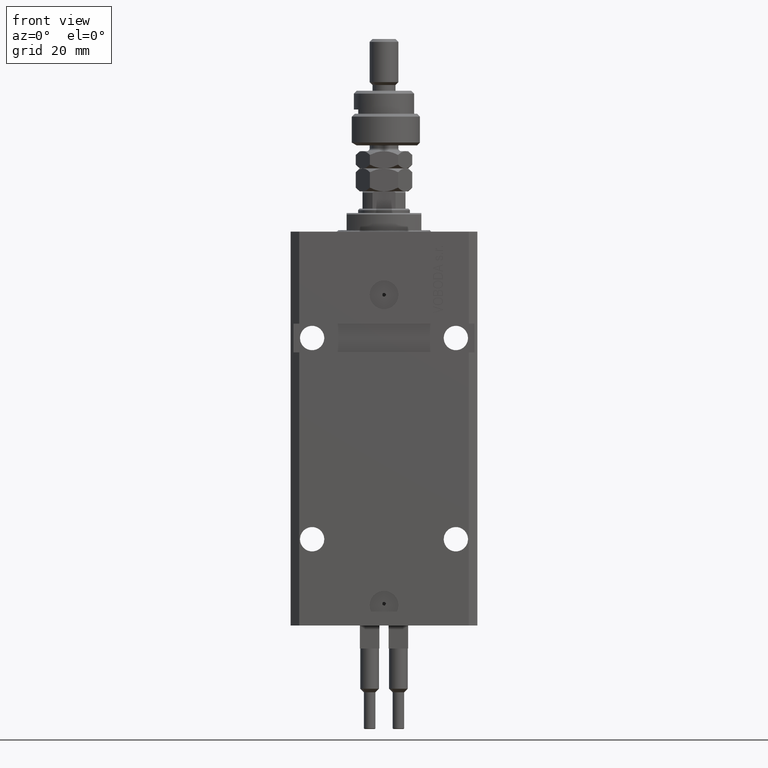
[diagram: clean part render]
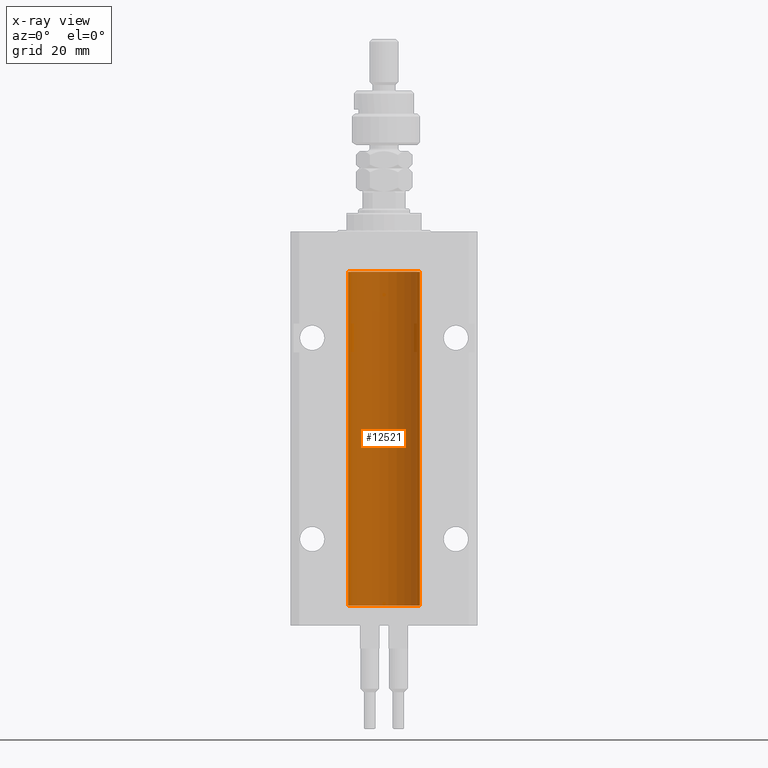
[diagram: x-ray — body ghosted, one internal face saturated and labeled with its STEP entity id]
A machine part, front view, then the same camera in x-ray: the body is ghosted and one INTERNAL B-rep face — a face not visible from any outside direction — is saturated and labeled: STEP entity #12521.
In plain terms, the highlighted cylindrical surface (edge-blend (fillet) strip) has radius 12.5 mm, axis along (0, 0, 1).
Its self-contained STEP definition (entity closure, byte-faithful):
#1076 = B_SPLINE_CURVE_WITH_KNOTS ( 'NONE', 3,
 ( #25476, #29626, #13275, #29127, #9394, #25225, #41075, #5492 ),
 .UNSPECIFIED., .F., .F.,
 ( 4, 2, 2, 4 ),
 ( 2.576359803311334014E-18, 0.0002443481056285645150, 0.0004886962112571264279, 0.0009773924225142506875 ),
 .UNSPECIFIED. ) ;
#1500 = CARTESIAN_POINT ( 'NONE',  ( -12.50000000000000000, 1.530808498934191521E-15, -13.99999999999999822 ) ) ;
#1703 = EDGE_CURVE ( 'NONE', #19791, #24004, #14175, .T. ) ;
#1780 = DIRECTION ( 'NONE',  ( -0.000000000000000000, -0.000000000000000000, 1.000000000000000000 ) ) ;
#2064 = CARTESIAN_POINT ( 'NONE',  ( 12.50000000000017941, 3.868073647803008074E-13, -124.3749999999964047 ) ) ;
#2684 = EDGE_CURVE ( 'NONE', #48720, #20170, #30873, .T. ) ;
#2827 = CARTESIAN_POINT ( 'NONE',  ( 12.49999999999999467, 0.1631389616600898151, -124.3750000000002274 ) ) ;
#2836 = CARTESIAN_POINT ( 'NONE',  ( 12.50000000000017941, 3.868073647803008074E-13, -124.3749999999964047 ) ) ;
#3736 = EDGE_CURVE ( 'NONE', #27056, #47317, #24657, .T. ) ;
#3799 = EDGE_CURVE ( 'NONE', #22326, #26170, #48735, .T. ) ;
#3872 = CARTESIAN_POINT ( 'NONE',  ( 12.50000000000000000, 0.000000000000000000, -130.0999999999999943 ) ) ;
#5492 = CARTESIAN_POINT ( 'NONE',  ( 12.48436522214846889, 0.6250000000078781426, -21.99999999999923261 ) ) ;
#6518 = EDGE_CURVE ( 'NONE', #47317, #26170, #37731, .T. ) ;
#6728 = CARTESIAN_POINT ( 'NONE',  ( 12.49012055744648642, 0.5002956126656095126, -124.6164171020240445 ) ) ;
#6980 = CARTESIAN_POINT ( 'NONE',  ( 12.48436522214887745, 0.6249999999996828093, -124.9184733946234758 ) ) ;
#6993 = DIRECTION ( 'NONE',  ( 0.000000000000000000, 0.000000000000000000, 1.000000000000000000 ) ) ;
#7132 = ORIENTED_EDGE ( 'NONE', *, *, #3736, .F. ) ;
#8784 = ORIENTED_EDGE ( 'NONE', *, *, #14230, .T. ) ;
#8832 = CARTESIAN_POINT ( 'NONE',  ( 12.48810305280568222, 0.5461368461738448365, -21.68525466142676805 ) ) ;
#9099 = CARTESIAN_POINT ( 'NONE',  ( 12.49999999999999112, 0.1631389616600879555, -21.37500000000019185 ) ) ;
#9305 = EDGE_CURVE ( 'NONE', #27056, #48929, #29946, .T. ) ;
#9394 = CARTESIAN_POINT ( 'NONE',  ( 12.49421963472024366, 0.3844519291903583103, -22.49947303647044805 ) ) ;
#9409 = EDGE_LOOP ( 'NONE', ( #37826, #7132, #23920, #19457, #12676, #8784, #26571, #32488, #40214, #13583 ) ) ;
#9602 = EDGE_CURVE ( 'NONE', #20679, #48720, #1076, .T. ) ;
#9683 = CARTESIAN_POINT ( 'NONE',  ( 12.50000000000000000, -1.470318446642941360E-15, -22.62500000000000000 ) ) ;
#9868 = CARTESIAN_POINT ( 'NONE',  ( 12.48520578595314845, 0.6087855079133684955, -21.83656717509346024 ) ) ;
#10090 = CARTESIAN_POINT ( 'NONE',  ( 12.48809900631782099, 0.5573988467445673001, -125.3264014793547290 ) ) ;
#10633 = CARTESIAN_POINT ( 'NONE',  ( 12.48436522214846711, 0.6250000000078859141, -124.9999999999992326 ) ) ;
#11560 = CARTESIAN_POINT ( 'NONE',  ( 12.50000000000000000, 5.055633433180616021E-15, -125.6250000000000142 ) ) ;
#12348 = VECTOR ( 'NONE', #49157, 1000.000000000000000 ) ;
#12521 = ADVANCED_FACE ( 'NONE', ( #32557 ), #24246, .F. ) ;
#12676 = ORIENTED_EDGE ( 'NONE', *, *, #1703, .T. ) ;
#13275 = CARTESIAN_POINT ( 'NONE',  ( 12.49915742890631876, 0.1636982395582437522, -22.60872397847025539 ) ) ;
#13341 = DIRECTION ( 'NONE',  ( -0.000000000000000000, -0.000000000000000000, 1.000000000000000000 ) ) ;
#13583 = ORIENTED_EDGE ( 'NONE', *, *, #3799, .T. ) ;
#13974 = CARTESIAN_POINT ( 'NONE',  ( 12.49915742890631876, 0.1636982395582410321, -125.6087239784702518 ) ) ;
#14175 = B_SPLINE_CURVE_WITH_KNOTS ( 'NONE', 3,
 ( #10633, #6980, #42304, #34003, #6728, #50601, #2827, #2064 ),
 .UNSPECIFIED., .F., .F.,
 ( 4, 2, 2, 4 ),
 ( 0.0009773924225142717210, 0.001221629287363824694, 0.001465866152213377450, 0.001954339881912483395 ),
 .UNSPECIFIED. ) ;
#14230 = EDGE_CURVE ( 'NONE', #24004, #20679, #17622, .T. ) ;
#15039 = DIRECTION ( 'NONE',  ( 1.000000000000000000, 0.000000000000000000, 0.000000000000000000 ) ) ;
#17397 = CARTESIAN_POINT ( 'NONE',  ( 12.50000000000017941, 3.868073565084946818E-13, -21.37499999999641176 ) ) ;
#17622 = LINE ( 'NONE', #24894, #35720 ) ;
#17718 = CARTESIAN_POINT ( 'NONE',  ( 12.48436522214846711, 0.6250000000078859141, -124.9999999999992326 ) ) ;
#19457 = ORIENTED_EDGE ( 'NONE', *, *, #38881, .T. ) ;
#19791 = VERTEX_POINT ( 'NONE', #17718 ) ;
#20170 = VERTEX_POINT ( 'NONE', #31318 ) ;
#20679 = VERTEX_POINT ( 'NONE', #9683 ) ;
#21145 = CARTESIAN_POINT ( 'NONE',  ( -12.50000000000000000, 1.530808498934191521E-15, -130.0999999999999943 ) ) ;
#21282 = CARTESIAN_POINT ( 'NONE',  ( 12.48436522214888100, 0.6249999999996762590, -21.91847339462350774 ) ) ;
#22326 = VERTEX_POINT ( 'NONE', #22933 ) ;
#22933 = CARTESIAN_POINT ( 'NONE',  ( 12.50000000000000000, 0.000000000000000000, -13.99999999999999822 ) ) ;
#23082 = CARTESIAN_POINT ( 'NONE',  ( 0.000000000000000000, 0.000000000000000000, -13.99999999999999822 ) ) ;
#23920 = ORIENTED_EDGE ( 'NONE', *, *, #9305, .T. ) ;
#24004 = VERTEX_POINT ( 'NONE', #2836 ) ;
#24246 = CYLINDRICAL_SURFACE ( 'NONE', #49769, 12.50000000000000000 ) ;
#24657 = CIRCLE ( 'NONE', #41290, 12.50000000000000000 ) ;
#24834 = CARTESIAN_POINT ( 'NONE',  ( 12.50000000000000000, 0.000000000000000000, -130.0999999999999943 ) ) ;
#24894 = CARTESIAN_POINT ( 'NONE',  ( 12.50000000000000000, 0.000000000000000000, -130.0999999999999943 ) ) ;
#25225 = CARTESIAN_POINT ( 'NONE',  ( 12.48809900631782099, 0.5573988467445639694, -22.32640147935474317 ) ) ;
#25476 = CARTESIAN_POINT ( 'NONE',  ( 12.50000000000000000, -1.470318446642941360E-15, -22.62500000000000000 ) ) ;
#25930 = CARTESIAN_POINT ( 'NONE',  ( 12.48436522214885613, 0.6250000000001550982, -125.1631274754030585 ) ) ;
#26170 = VERTEX_POINT ( 'NONE', #1500 ) ;
#26571 = ORIENTED_EDGE ( 'NONE', *, *, #9602, .T. ) ;
#27056 = VERTEX_POINT ( 'NONE', #3872 ) ;
#28660 = DIRECTION ( 'NONE',  ( -0.000000000000000000, -0.000000000000000000, 1.000000000000000000 ) ) ;
#28753 = B_SPLINE_CURVE_WITH_KNOTS ( 'NONE', 3,
 ( #38897, #33720, #13974, #29816, #45665, #10090, #25930, #32111 ),
 .UNSPECIFIED., .F., .F.,
 ( 4, 2, 2, 4 ),
 ( 4.913018323501965315E-18, 0.0002443481056285863075, 0.0004886962112571676276, 0.0009773924225142717210 ),
 .UNSPECIFIED. ) ;
#28833 = CARTESIAN_POINT ( 'NONE',  ( 12.48436522214846889, 0.6250000000078781426, -21.99999999999923261 ) ) ;
#29127 = CARTESIAN_POINT ( 'NONE',  ( 12.49625698805480667, 0.3151108292486967666, -22.54593695688170385 ) ) ;
#29626 = CARTESIAN_POINT ( 'NONE',  ( 12.49999999999999822, 0.08262306818362555316, -22.62499999999997513 ) ) ;
#29816 = CARTESIAN_POINT ( 'NONE',  ( 12.49625698805480845, 0.3151108292486959339, -125.5459369568817038 ) ) ;
#29946 = LINE ( 'NONE', #48927, #46462 ) ;
#30873 = B_SPLINE_CURVE_WITH_KNOTS ( 'NONE', 3,
 ( #28833, #21282, #9868, #8832, #37151, #41546, #9099, #17397 ),
 .UNSPECIFIED., .F., .F.,
 ( 4, 2, 2, 4 ),
 ( 0.0009773924225142506875, 0.001221629287363794770, 0.001465866152213338852, 0.001954339881912434389 ),
 .UNSPECIFIED. ) ;
#31318 = CARTESIAN_POINT ( 'NONE',  ( 12.50000000000017941, 3.868073565084946818E-13, -21.37499999999641176 ) ) ;
#32111 = CARTESIAN_POINT ( 'NONE',  ( 12.48436522214846711, 0.6250000000078859141, -124.9999999999992326 ) ) ;
#32488 = ORIENTED_EDGE ( 'NONE', *, *, #2684, .T. ) ;
#32557 = FACE_OUTER_BOUND ( 'NONE', #9409, .T. ) ;
#32630 = LINE ( 'NONE', #24834, #49659 ) ;
#33720 = CARTESIAN_POINT ( 'NONE',  ( 12.50000000000000000, 0.08262306818362785688, -125.6249999999999858 ) ) ;
#33745 = EDGE_CURVE ( 'NONE', #20170, #22326, #32630, .T. ) ;
#33766 = DIRECTION ( 'NONE',  ( 0.000000000000000000, 0.000000000000000000, 1.000000000000000000 ) ) ;
#34003 = CARTESIAN_POINT ( 'NONE',  ( 12.48810305280568222, 0.5461368461738498326, -124.6852546614267538 ) ) ;
#35720 = VECTOR ( 'NONE', #1780, 1000.000000000000000 ) ;
#36536 = CARTESIAN_POINT ( 'NONE',  ( 12.48436522214846889, 0.6250000000078781426, -21.99999999999923261 ) ) ;
#36733 = CARTESIAN_POINT ( 'NONE',  ( 0.000000000000000000, 0.000000000000000000, -130.0999999999999943 ) ) ;
#36960 = CARTESIAN_POINT ( 'NONE',  ( -12.50000000000000000, 1.530808498934191521E-15, -130.0999999999999943 ) ) ;
#37151 = CARTESIAN_POINT ( 'NONE',  ( 12.49012055744648997, 0.5002956126655976332, -21.61641710202404454 ) ) ;
#37731 = LINE ( 'NONE', #36960, #12348 ) ;
#37826 = ORIENTED_EDGE ( 'NONE', *, *, #6518, .F. ) ;
#38881 = EDGE_CURVE ( 'NONE', #48929, #19791, #28753, .T. ) ;
#38897 = CARTESIAN_POINT ( 'NONE',  ( 12.50000000000000000, 5.055633433180616021E-15, -125.6250000000000142 ) ) ;
#40214 = ORIENTED_EDGE ( 'NONE', *, *, #33745, .T. ) ;
#41075 = CARTESIAN_POINT ( 'NONE',  ( 12.48436522214885969, 0.6250000000001448841, -22.16312747540307271 ) ) ;
#41290 = AXIS2_PLACEMENT_3D ( 'NONE', #41553, #33766, #49608 ) ;
#41546 = CARTESIAN_POINT ( 'NONE',  ( 12.49631206032075958, 0.3252904079142808214, -21.44139700214925526 ) ) ;
#41553 = CARTESIAN_POINT ( 'NONE',  ( 0.000000000000000000, 0.000000000000000000, -130.0999999999999943 ) ) ;
#42304 = CARTESIAN_POINT ( 'NONE',  ( 12.48520578595315023, 0.6087855079133756009, -124.8365671750934780 ) ) ;
#44517 = DIRECTION ( 'NONE',  ( 1.000000000000000000, 0.000000000000000000, 0.000000000000000000 ) ) ;
#44852 = DIRECTION ( 'NONE',  ( -0.000000000000000000, -0.000000000000000000, 1.000000000000000000 ) ) ;
#45439 = AXIS2_PLACEMENT_3D ( 'NONE', #23082, #6993, #15039 ) ;
#45665 = CARTESIAN_POINT ( 'NONE',  ( 12.49421963472024544, 0.3844519291903631952, -125.4994730364704907 ) ) ;
#46462 = VECTOR ( 'NONE', #13341, 1000.000000000000000 ) ;
#47317 = VERTEX_POINT ( 'NONE', #21145 ) ;
#48720 = VERTEX_POINT ( 'NONE', #36536 ) ;
#48735 = CIRCLE ( 'NONE', #45439, 12.50000000000000000 ) ;
#48927 = CARTESIAN_POINT ( 'NONE',  ( 12.50000000000000000, 0.000000000000000000, -130.0999999999999943 ) ) ;
#48929 = VERTEX_POINT ( 'NONE', #11560 ) ;
#49157 = DIRECTION ( 'NONE',  ( -0.000000000000000000, -0.000000000000000000, 1.000000000000000000 ) ) ;
#49608 = DIRECTION ( 'NONE',  ( 1.000000000000000000, 0.000000000000000000, 0.000000000000000000 ) ) ;
#49659 = VECTOR ( 'NONE', #44852, 1000.000000000000000 ) ;
#49769 = AXIS2_PLACEMENT_3D ( 'NONE', #36733, #28660, #44517 ) ;
#50601 = CARTESIAN_POINT ( 'NONE',  ( 12.49631206032075781, 0.3252904079142953098, -124.4413970021492872 ) ) ;